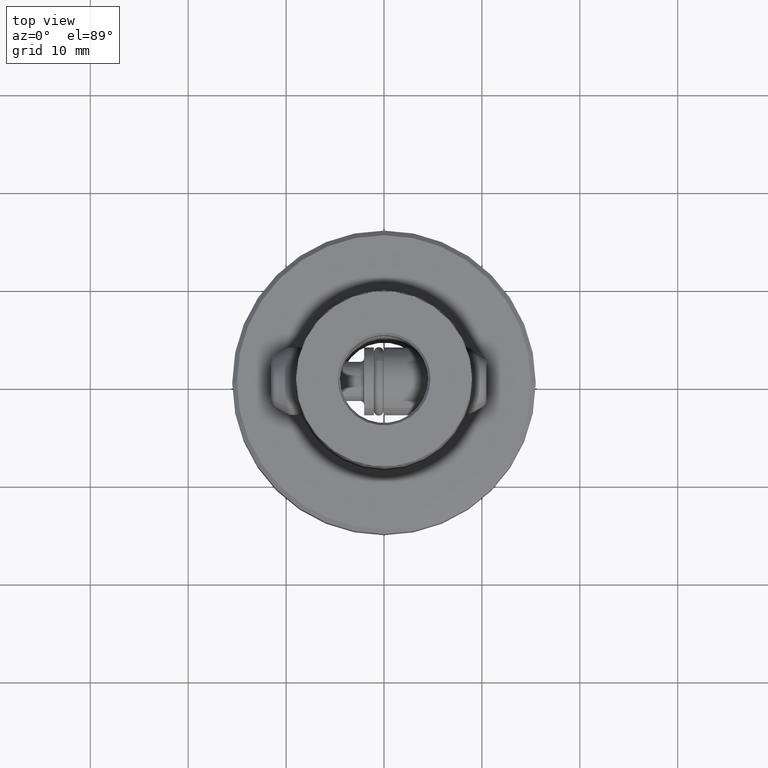
[diagram: clean part render]
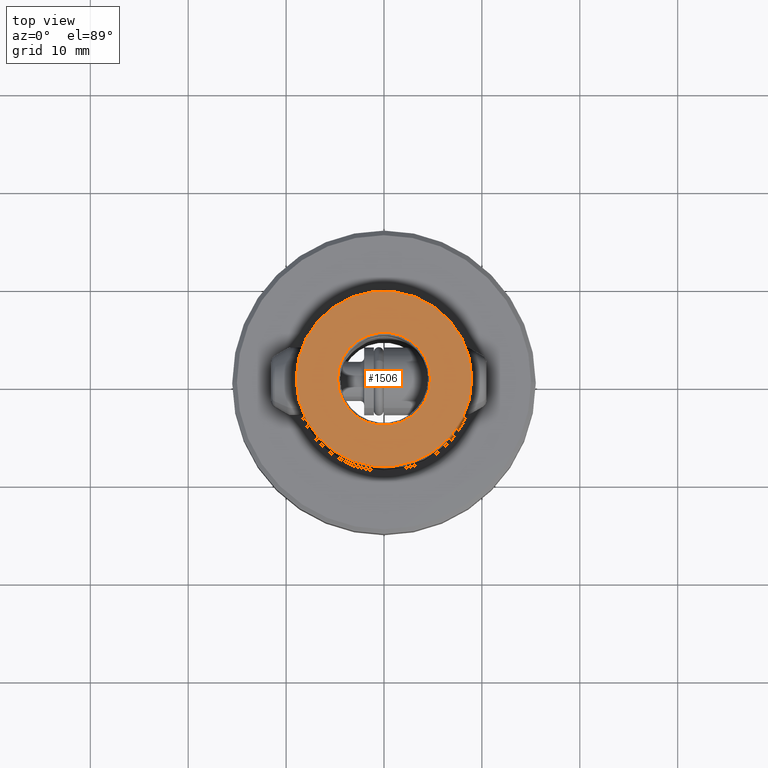
[diagram: same view with one face highlighted and labeled with its STEP entity id]
A machine part, top view. The second image highlights one B-rep face of the part: STEP entity #1506.
In plain terms, the highlighted planar face has unit normal (0, 0, -1).
Its self-contained STEP definition (entity closure, byte-faithful):
#932=EDGE_CURVE('NONE',#1218,#1076,#2267,.F.);
#1004=EDGE_CURVE('NONE',#1434,#1622,#2349,.T.);
#1076=VERTEX_POINT('NONE',#2429);
#1218=VERTEX_POINT('NONE',#2584);
#1434=VERTEX_POINT('NONE',#2825);
#1506=ADVANCED_FACE('NONE',(#2908,#2909),#2910,.F.);
#1580=EDGE_CURVE('NONE',#1076,#1218,#2994,.T.);
#1622=VERTEX_POINT('NONE',#3041);
#1708=EDGE_CURVE('NONE',#1622,#1434,#3139,.T.);
#2267=CIRCLE('',#3985,4.74999999999999);
#2349=CIRCLE('',#4130,8.96929491924311);
#2429=CARTESIAN_POINT('',(-4.75,1.18926746163657E-014,20.0));
#2584=CARTESIAN_POINT('',(4.75,-1.13109865983001E-014,20.0));
#2825=CARTESIAN_POINT('',(8.96929491924311,-2.02945189962999E-014,20.0));
#2908=FACE_OUTER_BOUND('',#5291,.T.);
#2909=FACE_BOUND('',#5292,.T.);
#2910=PLANE('',#5293);
#2994=CIRCLE('',#5451,4.74999999999999);
#3041=CARTESIAN_POINT('',(-8.96929491924311,2.13947846328906E-014,20.0));
#3139=CIRCLE('',#5680,8.96929491924311);
#3985=AXIS2_PLACEMENT_3D('',#6619,#6620,#6621);
#4130=AXIS2_PLACEMENT_3D('',#6737,#6738,#6739);
#5291=EDGE_LOOP('',(#7422,#7423));
#5292=EDGE_LOOP('',(#7424,#7425));
#5293=AXIS2_PLACEMENT_3D('',#7426,#7427,#7428);
#5451=AXIS2_PLACEMENT_3D('',#7546,#7547,#7548);
#5680=AXIS2_PLACEMENT_3D('',#7731,#7732,#7733);
#6619=CARTESIAN_POINT('',(0.0,0.0,20.0));
#6620=DIRECTION('',(0.0,0.0,-1.0));
#6621=DIRECTION('',(1.0,-2.38126033648422E-015,0.0));
#6737=CARTESIAN_POINT('',(0.0,0.0,20.0));
#6738=DIRECTION('',(0.0,0.0,1.0));
#6739=DIRECTION('',(-1.0,2.38126033648423E-015,0.0));
#7422=ORIENTED_EDGE('',*,*,#1708,.T.);
#7423=ORIENTED_EDGE('',*,*,#1004,.T.);
#7424=ORIENTED_EDGE('',*,*,#932,.F.);
#7425=ORIENTED_EDGE('',*,*,#1580,.F.);
#7426=CARTESIAN_POINT('',(0.0,0.0,20.0));
#7427=DIRECTION('',(0.0,0.0,-1.0));
#7428=DIRECTION('',(-1.0,0.0,0.0));
#7546=CARTESIAN_POINT('',(0.0,0.0,20.0));
#7547=DIRECTION('',(-0.0,0.0,1.0));
#7548=DIRECTION('',(1.0,-2.38126033648422E-015,0.0));
#7731=CARTESIAN_POINT('',(0.0,0.0,20.0));
#7732=DIRECTION('',(0.0,0.0,1.0));
#7733=DIRECTION('',(-1.0,2.38126033648423E-015,0.0));